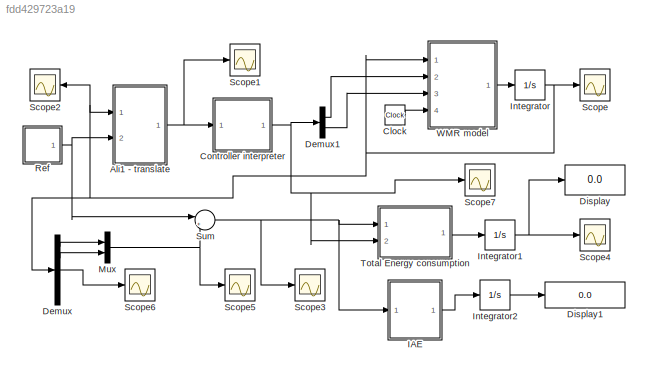
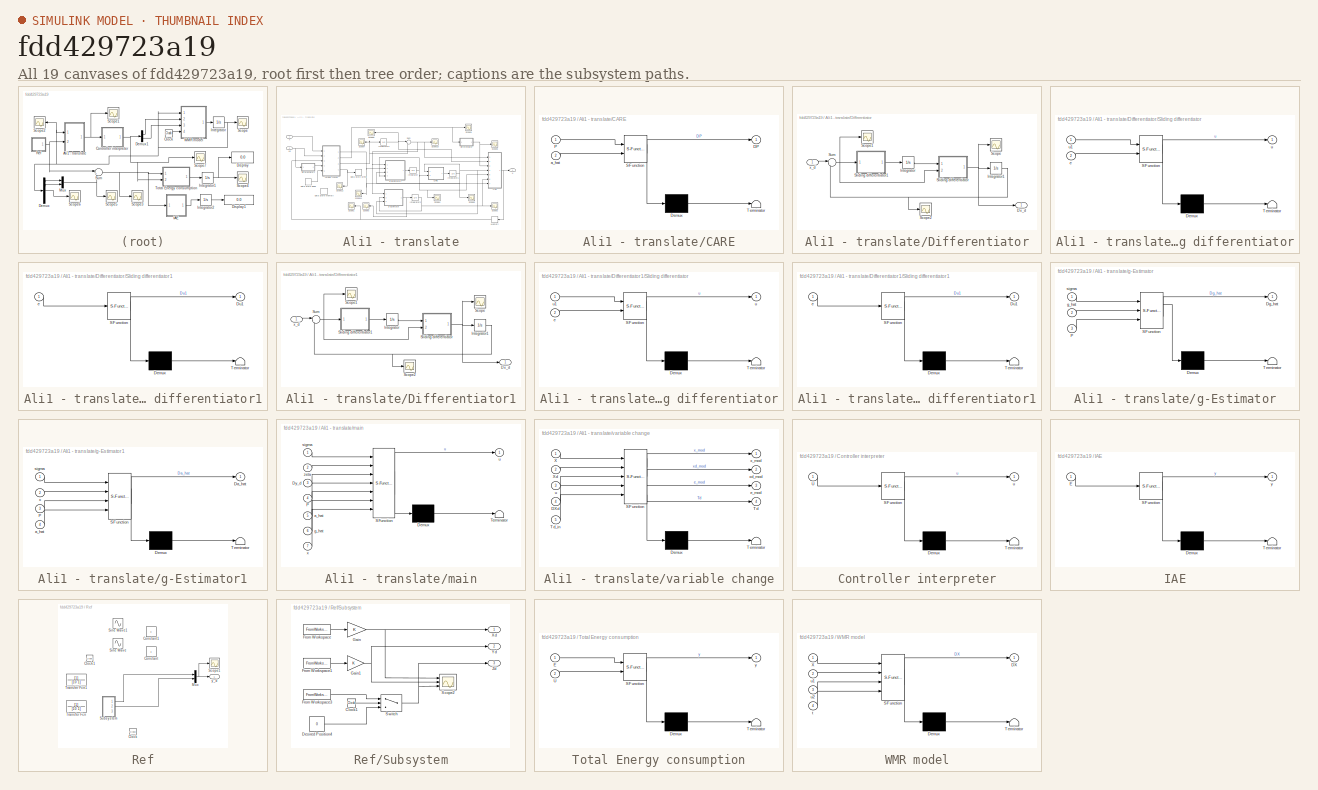
[diagram: thumbnail index - all 19 canvases of the model, root first then tree order]
MODEL slx_fdd429723a19
KIND model
CONFIG AbsTol = auto
CONFIG EnableMultiTasking = on
CONFIG FixedStep = auto
CONFIG InitFcn = Cons_Ali_Mimo_04_WMR_09\n
CONFIG MaxStep = auto
CONFIG MinStep = auto
CONFIG RelTol = 1e-3
CONFIG SampleTimeConstraint = Unconstrained
CONFIG Solver = ode45
CONFIG SolverName = ode45
CONFIG StartTime = 0.0
CONFIG StopTime = 500
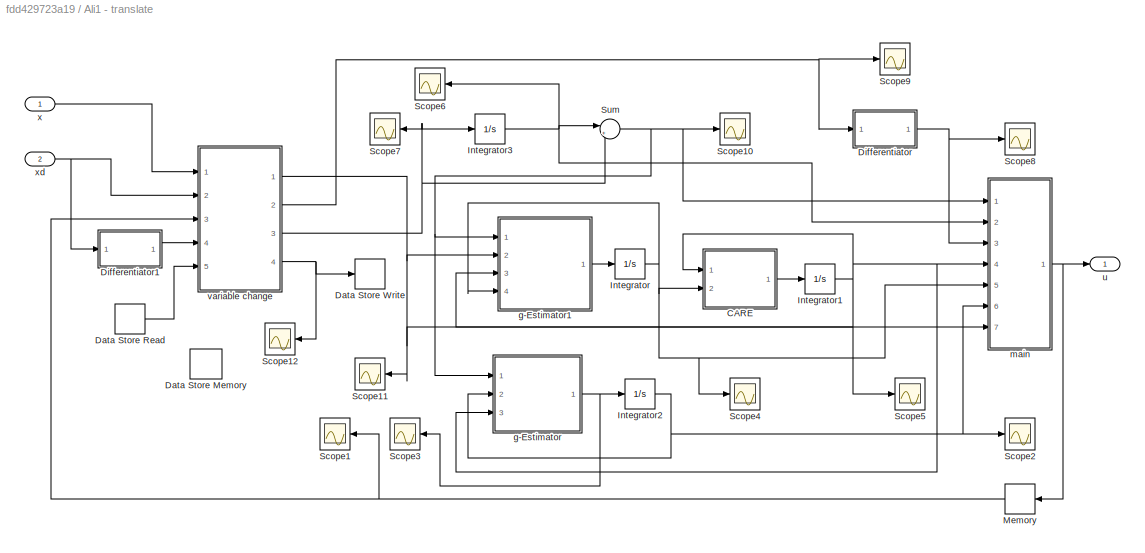
BLOCK [SubSystem] Ali1 - translate
  Ports = [2, 1]
  RequestExecContextInheritance = off
  Variant = off
BLOCK [SubSystem] Ali1 - translate/CARE
  ErrorFcn = Stateflow.Translate.translate
  PermitHierarchicalResolution = ExplicitOnly
  Ports = [2, 1]
  RequestExecContextInheritance = off
  SFBlockType = MATLAB Function
  TreatAsAtomicUnit = on
  Variant = off
BLOCK [Demux] Ali1 - translate/CARE/ Demux 
  Outputs = 1
  Ports = [1, 1]
BLOCK [S-Function] Ali1 - translate/CARE/ SFunction 
  EnableBusSupport = on
  FunctionName = sf_sfun
  Parameters = B,Q,R
  PortCounts = [2 2]
  Ports = [2, 2]
  SFcnIsStateOwnerBlock = off
  SFunctionDeploymentMode = off
  Tag = Stateflow S-Function Ultra_Local_Model_1_Ali37_MIMO_04_WMR_09 20
BLOCK [Terminator] Ali1 - translate/CARE/ Terminator 
BLOCK [Outport] Ali1 - translate/CARE/DP
  IconDisplay = Port number
BLOCK [Inport] Ali1 - translate/CARE/P
  IconDisplay = Port number
BLOCK [Inport] Ali1 - translate/CARE/a_hat
  IconDisplay = Port number
  Port = 2
BLOCK [DataStoreMemory] Ali1 - translate/Data Store Memory
  DataStoreName = Td_G
  ReadBeforeWriteMsg = warning
  ShowAdditionalParam = off
  WriteAfterReadMsg = warning
  WriteAfterWriteMsg = warning
BLOCK [DataStoreRead] Ali1 - translate/Data Store Read
  DataStoreName = Td_G
  Ports = [0, 1]
BLOCK [DataStoreWrite] Ali1 - translate/Data Store Write
  DataStoreName = Td_G
  Ports = [1]
BLOCK [SubSystem] Ali1 - translate/Differentiator
  Ports = [1, 1]
  RequestExecContextInheritance = off
  Variant = off
BLOCK [Outport] Ali1 - translate/Differentiator/Dx_d
  IconDisplay = Port number
BLOCK [Integrator] Ali1 - translate/Differentiator/Integrator
  InitialCondition = zeros(n,1)
  Ports = [1, 1]
BLOCK [Integrator] Ali1 - translate/Differentiator/Integrator1
  InitialCondition = zeros(n,1)
  Ports = [1, 1]
BLOCK [Scope] Ali1 - translate/Differentiator/Scope
  NumInputPorts = 1
  Ports = [1]
  ScopeSpecificationString = C++SS(StrPVP('Location','[516, 375, 840, 614]'),StrPVP('Open','off'),MxPVP('AxesTitles',53,'struct(''axes1'',''%<SignalLabel>'')'),MxPVP('ScopeGraphics',56,'struct(''FigureColor'',''[0.5 0.5 0.5]'',''AxesColor'',''[0 0 0]'',''AxesTickColor'',''[1 1 1]'',''LineColors'',''[1 1 0;1 0 1;0 1 1;1 0 0;0 1 0;0 0 1]'',''LineStyles'',''-|-|-|-|-|-'',''LineWidths'',''[0.5 0.5 0.5 0.5 0.5 0.5]'',''MarkerStyle...<+272ch>  <repeated x3 — deduplicated; at blocks: Scope, Scope2>
BLOCK [Scope] Ali1 - translate/Differentiator/Scope1
  NumInputPorts = 1
  Ports = [1]
  ScopeSpecificationString = C++SS(StrPVP('Location','[5, 49, 1367, 737]'),StrPVP('Open','off'),StrPVP('ZoomMode','yonly'),MxPVP('AxesTitles',53,'struct(''axes1'',''%<SignalLabel>'')'),MxPVP('ScopeGraphics',56,'struct(''FigureColor'',''[0.5 0.5 0.5]'',''AxesColor'',''[0 0 0]'',''AxesTickColor'',''[1 1 1]'',''LineColors'',''[1 1 0;1 0 1;0 1 1;1 0 0;0 1 0;0 0 1]'',''LineStyles'',''-|-|-|-|-|-'',''LineWidths'',''[0.5 0.5 0.5 0.5...<+339ch>
BLOCK [Scope] Ali1 - translate/Differentiator/Scope2
  NumInputPorts = 1
  Ports = [1]
BLOCK [SubSystem] Ali1 - translate/Differentiator/Sliding differentiator
  ErrorFcn = Stateflow.Translate.translate
  PermitHierarchicalResolution = ExplicitOnly
  Ports = [2, 1]
  RequestExecContextInheritance = off
  SFBlockType = MATLAB Function
  TreatAsAtomicUnit = on
  Variant = off
BLOCK [Demux] Ali1 - translate/Differentiator/Sliding differentiator/ Demux 
  Outputs = 1
  Ports = [1, 1]
BLOCK [S-Function] Ali1 - translate/Differentiator/Sliding differentiator/ SFunction 
  EnableBusSupport = on
  FunctionName = sf_sfun
  Parameters = k1,n
  PortCounts = [2 2]
  Ports = [2, 2]
  SFcnIsStateOwnerBlock = off
  SFunctionDeploymentMode = off
  Tag = Stateflow S-Function Ultra_Local_Model_1_Ali37_MIMO_04_WMR_09 4
BLOCK [Terminator] Ali1 - translate/Differentiator/Sliding differentiator/ Terminator 
BLOCK [Inport] Ali1 - translate/Differentiator/Sliding differentiator/e
  IconDisplay = Port number
  Port = 2
BLOCK [Outport] Ali1 - translate/Differentiator/Sliding differentiator/u
  IconDisplay = Port number
BLOCK [Inport] Ali1 - translate/Differentiator/Sliding differentiator/u1
  IconDisplay = Port number
BLOCK [SubSystem] Ali1 - translate/Differentiator/Sliding differentiator1
  ErrorFcn = Stateflow.Translate.translate
  PermitHierarchicalResolution = ExplicitOnly
  Ports = [1, 1]
  RequestExecContextInheritance = off
  SFBlockType = MATLAB Function
  TreatAsAtomicUnit = on
  Variant = off
BLOCK [Demux] Ali1 - translate/Differentiator/Sliding differentiator1/ Demux 
  Outputs = 1
  Ports = [1, 1]
BLOCK [S-Function] Ali1 - translate/Differentiator/Sliding differentiator1/ SFunction 
  EnableBusSupport = on
  FunctionName = sf_sfun
  Parameters = k2,n
  PortCounts = [1 2]
  Ports = [1, 2]
  SFcnIsStateOwnerBlock = off
  SFunctionDeploymentMode = off
  Tag = Stateflow S-Function Ultra_Local_Model_1_Ali37_MIMO_04_WMR_09 5
BLOCK [Terminator] Ali1 - translate/Differentiator/Sliding differentiator1/ Terminator 
BLOCK [Outport] Ali1 - translate/Differentiator/Sliding differentiator1/Du1
  IconDisplay = Port number
BLOCK [Inport] Ali1 - translate/Differentiator/Sliding differentiator1/e
  IconDisplay = Port number
BLOCK [Sum] Ali1 - translate/Differentiator/Sum
  IconShape = round
  InputSameDT = off
  Inputs = |-+
  OutDataTypeStr = Inherit: Inherit via internal rule
  Ports = [2, 1]
  SaturateOnIntegerOverflow = off
BLOCK [Inport] Ali1 - translate/Differentiator/x_d
  IconDisplay = Port number
BLOCK [SubSystem] Ali1 - translate/Differentiator1
  Ports = [1, 1]
  RequestExecContextInheritance = off
  Variant = off
BLOCK [Outport] Ali1 - translate/Differentiator1/Dx_d
  IconDisplay = Port number
BLOCK [Integrator] Ali1 - translate/Differentiator1/Integrator
  InitialCondition = zeros(nd,1)
  Ports = [1, 1]
BLOCK [Integrator] Ali1 - translate/Differentiator1/Integrator1
  InitialCondition = zeros(nd,1)
  Ports = [1, 1]
BLOCK [Scope] Ali1 - translate/Differentiator1/Scope
  NumInputPorts = 1
  Ports = [1]
  ScopeSpecificationString = C++SS(StrPVP('Location','[6, 57, 687, 736]'),StrPVP('Open','off'),StrPVP('ZoomMode','yonly'),MxPVP('AxesTitles',53,'struct(''axes1'',''%<SignalLabel>'')'),MxPVP('ScopeGraphics',56,'struct(''FigureColor'',''[0.5 0.5 0.5]'',''AxesColor'',''[0 0 0]'',''AxesTickColor'',''[1 1 1]'',''LineColors'',''[1 1 0;1 0 1;0 1 1;1 0 0;0 1 0;0 0 1]'',''LineStyles'',''-|-|-|-|-|-'',''LineWidths'',''[0.5 0.5 0.5 0.5 ...<+296ch>
BLOCK [Scope] Ali1 - translate/Differentiator1/Scope1
  NumInputPorts = 1
  Ports = [1]
  ScopeSpecificationString = C++SS(StrPVP('Location','[5, 49, 1367, 737]'),StrPVP('Open','off'),StrPVP('ZoomMode','yonly'),MxPVP('AxesTitles',53,'struct(''axes1'',''%<SignalLabel>'')'),MxPVP('ScopeGraphics',56,'struct(''FigureColor'',''[0.5 0.5 0.5]'',''AxesColor'',''[0 0 0]'',''AxesTickColor'',''[1 1 1]'',''LineColors'',''[1 1 0;1 0 1;0 1 1;1 0 0;0 1 0;0 0 1]'',''LineStyles'',''-|-|-|-|-|-'',''LineWidths'',''[0.5 0.5 0.5 0.5...<+339ch>
BLOCK [Scope] Ali1 - translate/Differentiator1/Scope2
  NumInputPorts = 1
  Ports = [1]
BLOCK [SubSystem] Ali1 - translate/Differentiator1/Sliding differentiator
  ErrorFcn = Stateflow.Translate.translate
  PermitHierarchicalResolution = ExplicitOnly
  Ports = [2, 1]
  RequestExecContextInheritance = off
  SFBlockType = MATLAB Function
  TreatAsAtomicUnit = on
  Variant = off
BLOCK [Demux] Ali1 - translate/Differentiator1/Sliding differentiator/ Demux 
  Outputs = 1
  Ports = [1, 1]
BLOCK [S-Function] Ali1 - translate/Differentiator1/Sliding differentiator/ SFunction 
  EnableBusSupport = on
  FunctionName = sf_sfun
  Parameters = k1,nd
  PortCounts = [2 2]
  Ports = [2, 2]
  SFcnIsStateOwnerBlock = off
  SFunctionDeploymentMode = off
  Tag = Stateflow S-Function Ultra_Local_Model_1_Ali37_MIMO_04_WMR_09 22
BLOCK [Terminator] Ali1 - translate/Differentiator1/Sliding differentiator/ Terminator 
BLOCK [Inport] Ali1 - translate/Differentiator1/Sliding differentiator/e
  IconDisplay = Port number
  Port = 2
BLOCK [Outport] Ali1 - translate/Differentiator1/Sliding differentiator/u
  IconDisplay = Port number
BLOCK [Inport] Ali1 - translate/Differentiator1/Sliding differentiator/u1
  IconDisplay = Port number
BLOCK [SubSystem] Ali1 - translate/Differentiator1/Sliding differentiator1
  ErrorFcn = Stateflow.Translate.translate
  PermitHierarchicalResolution = ExplicitOnly
  Ports = [1, 1]
  RequestExecContextInheritance = off
  SFBlockType = MATLAB Function
  TreatAsAtomicUnit = on
  Variant = off
BLOCK [Demux] Ali1 - translate/Differentiator1/Sliding differentiator1/ Demux 
  Outputs = 1
  Ports = [1, 1]
BLOCK [S-Function] Ali1 - translate/Differentiator1/Sliding differentiator1/ SFunction 
  EnableBusSupport = on
  FunctionName = sf_sfun
  Parameters = k2,nd
  PortCounts = [1 2]
  Ports = [1, 2]
  SFcnIsStateOwnerBlock = off
  SFunctionDeploymentMode = off
  Tag = Stateflow S-Function Ultra_Local_Model_1_Ali37_MIMO_04_WMR_09 23
BLOCK [Terminator] Ali1 - translate/Differentiator1/Sliding differentiator1/ Terminator 
BLOCK [Outport] Ali1 - translate/Differentiator1/Sliding differentiator1/Du1
  IconDisplay = Port number
BLOCK [Inport] Ali1 - translate/Differentiator1/Sliding differentiator1/e
  IconDisplay = Port number
BLOCK [Sum] Ali1 - translate/Differentiator1/Sum
  IconShape = round
  InputSameDT = off
  Inputs = |-+
  OutDataTypeStr = Inherit: Inherit via internal rule
  Ports = [2, 1]
  SaturateOnIntegerOverflow = off
BLOCK [Inport] Ali1 - translate/Differentiator1/x_d
  IconDisplay = Port number
BLOCK [Integrator] Ali1 - translate/Integrator
  InitialCondition = zeros(n)
  Ports = [1, 1]
BLOCK [Integrator] Ali1 - translate/Integrator1
  InitialCondition = eye(n)
  Ports = [1, 1]
BLOCK [Integrator] Ali1 - translate/Integrator2
  InitialCondition = zeros(n,1)
  Ports = [1, 1]
BLOCK [Integrator] Ali1 - translate/Integrator3
  InitialCondition = zeros(n,1)
  Ports = [1, 1]
BLOCK [Memory] Ali1 - translate/Memory
  InitialCondition = zeros(m,1)
BLOCK [Scope] Ali1 - translate/Scope1
  NumInputPorts = 1
  Ports = [1]
  ScopeSpecificationString = C++SS(StrPVP('Location','[6, 49, 1360, 737]'),StrPVP('Open','off'),StrPVP('ZoomMode','yonly'),MxPVP('AxesTitles',53,'struct(''axes1'',''%<SignalLabel>'')'),MxPVP('ScopeGraphics',56,'struct(''FigureColor'',''[0.5 0.5 0.5]'',''AxesColor'',''[0 0 0]'',''AxesTickColor'',''[1 1 1]'',''LineColors'',''[1 1 0;1 0 1;0 1 1;1 0 0;0 1 0;0 0 1]'',''LineStyles'',''-|-|-|-|-|-'',''LineWidths'',''[0.5 0.5 0.5 0.5...<+289ch>
BLOCK [Scope] Ali1 - translate/Scope10
  NumInputPorts = 1
  Ports = [1]
  ScopeSpecificationString = C++SS(StrPVP('Location','[6, 49, 1360, 737]'),StrPVP('Open','off'),StrPVP('ZoomMode','yonly'),MxPVP('AxesTitles',53,'struct(''axes1'',''%<SignalLabel>'')'),MxPVP('ScopeGraphics',56,'struct(''FigureColor'',''[0.5 0.5 0.5]'',''AxesColor'',''[0 0 0]'',''AxesTickColor'',''[1 1 1]'',''LineColors'',''[1 1 0;1 0 1;0 1 1;1 0 0;0 1 0;0 0 1]'',''LineStyles'',''-|-|-|-|-|-'',''LineWidths'',''[0.5 0.5 0.5 0.5...<+323ch>
BLOCK [Scope] Ali1 - translate/Scope11
  NumInputPorts = 1
  Ports = [1]
  ScopeSpecificationString = C++SS(StrPVP('Location','[6, 49, 1360, 737]'),StrPVP('Open','off'),StrPVP('ZoomMode','yonly'),MxPVP('AxesTitles',53,'struct(''axes1'',''%<SignalLabel>'')'),MxPVP('ScopeGraphics',56,'struct(''FigureColor'',''[0.5 0.5 0.5]'',''AxesColor'',''[0 0 0]'',''AxesTickColor'',''[1 1 1]'',''LineColors'',''[1 1 0;1 0 1;0 1 1;1 0 0;0 1 0;0 0 1]'',''LineStyles'',''-|-|-|-|-|-'',''LineWidths'',''[0.5 0.5 0.5 0.5...<+265ch>
BLOCK [Scope] Ali1 - translate/Scope12
  NumInputPorts = 1
  Ports = [1]
  ScopeSpecificationString = C++SS(StrPVP('Location','[5, 49, 1367, 737]'),StrPVP('Open','off'),StrPVP('ZoomMode','xonly'),MxPVP('AxesTitles',53,'struct(''axes1'',''%<SignalLabel>'')'),MxPVP('ScopeGraphics',56,'struct(''FigureColor'',''[0.5 0.5 0.5]'',''AxesColor'',''[0 0 0]'',''AxesTickColor'',''[1 1 1]'',''LineColors'',''[1 1 0;1 0 1;0 1 1;1 0 0;0 1 0;0 0 1]'',''LineStyles'',''-|-|-|-|-|-'',''LineWidths'',''[0.5 0.5 0.5 0.5...<+361ch>
BLOCK [Scope] Ali1 - translate/Scope2
  NumInputPorts = 1
  Ports = [1]
  ScopeSpecificationString = C++SS(StrPVP('Location','[6, 49, 1360, 737]'),StrPVP('Open','off'),StrPVP('ZoomMode','xonly'),MxPVP('AxesTitles',53,'struct(''axes1'',''%<SignalLabel>'')'),MxPVP('ScopeGraphics',56,'struct(''FigureColor'',''[0.5 0.5 0.5]'',''AxesColor'',''[0 0 0]'',''AxesTickColor'',''[1 1 1]'',''LineColors'',''[1 1 0;1 0 1;0 1 1;1 0 0;0 1 0;0 0 1]'',''LineStyles'',''-|-|-|-|-|-'',''LineWidths'',''[0.5 0.5 0.5 0.5...<+364ch>
BLOCK [Scope] Ali1 - translate/Scope3
  NumInputPorts = 1
  Ports = [1]
  ScopeSpecificationString = C++SS(StrPVP('Location','[5, 49, 1367, 737]'),StrPVP('Open','off'),MxPVP('AxesTitles',53,'struct(''axes1'',''%<SignalLabel>'')'),MxPVP('ScopeGraphics',56,'struct(''FigureColor'',''[0.5 0.5 0.5]'',''AxesColor'',''[0 0 0]'',''AxesTickColor'',''[1 1 1]'',''LineColors'',''[1 1 0;1 0 1;0 1 1;1 0 0;0 1 0;0 0 1]'',''LineStyles'',''-|-|-|-|-|-'',''LineWidths'',''[0.5 0.5 0.5 0.5 0.5 0.5]'',''MarkerStyles'...<+261ch>
BLOCK [Scope] Ali1 - translate/Scope4
  NumInputPorts = 1
  Ports = [1]
  ScopeSpecificationString = C++SS(StrPVP('Location','[6, 49, 1360, 737]'),StrPVP('Open','off'),StrPVP('ZoomMode','yonly'),MxPVP('AxesTitles',53,'struct(''axes1'',''%<SignalLabel>'')'),MxPVP('ScopeGraphics',56,'struct(''FigureColor'',''[0.5 0.5 0.5]'',''AxesColor'',''[0 0 0]'',''AxesTickColor'',''[1 1 1]'',''LineColors'',''[1 1 0;1 0 1;0 1 1;1 0 0;0 1 0;0 0 1]'',''LineStyles'',''-|-|-|-|-|-'',''LineWidths'',''[0.5 0.5 0.5 0.5...<+363ch>
BLOCK [Scope] Ali1 - translate/Scope5
  NumInputPorts = 1
  Ports = [1]
  ScopeSpecificationString = C++SS(StrPVP('Location','[6, 49, 1360, 737]'),StrPVP('Open','off'),StrPVP('ZoomMode','yonly'),MxPVP('AxesTitles',53,'struct(''axes1'',''%<SignalLabel>'')'),MxPVP('ScopeGraphics',56,'struct(''FigureColor'',''[0.5 0.5 0.5]'',''AxesColor'',''[0 0 0]'',''AxesTickColor'',''[1 1 1]'',''LineColors'',''[1 1 0;1 0 1;0 1 1;1 0 0;0 1 0;0 0 1]'',''LineStyles'',''-|-|-|-|-|-'',''LineWidths'',''[0.5 0.5 0.5 0.5...<+359ch>
BLOCK [Scope] Ali1 - translate/Scope6
  NumInputPorts = 1
  Ports = [1]
  ScopeSpecificationString = C++SS(StrPVP('Location','[188, 390, 512, 629]'),StrPVP('Open','off'),MxPVP('AxesTitles',53,'struct(''axes1'',''%<SignalLabel>'')'),MxPVP('ScopeGraphics',56,'struct(''FigureColor'',''[0.5 0.5 0.5]'',''AxesColor'',''[0 0 0]'',''AxesTickColor'',''[1 1 1]'',''LineColors'',''[1 1 0;1 0 1;0 1 1;1 0 0;0 1 0;0 0 1]'',''LineStyles'',''-|-|-|-|-|-'',''LineWidths'',''[0.5 0.5 0.5 0.5 0.5 0.5]'',''MarkerStyle...<+272ch>
BLOCK [Scope] Ali1 - translate/Scope7
  NumInputPorts = 1
  Ports = [1]
  ScopeSpecificationString = C++SS(StrPVP('Location','[5, 49, 1367, 737]'),StrPVP('Open','off'),StrPVP('ZoomMode','yonly'),MxPVP('AxesTitles',53,'struct(''axes1'',''%<SignalLabel>'')'),MxPVP('ScopeGraphics',56,'struct(''FigureColor'',''[0.5 0.5 0.5]'',''AxesColor'',''[0 0 0]'',''AxesTickColor'',''[1 1 1]'',''LineColors'',''[1 1 0;1 0 1;0 1 1;1 0 0;0 1 0;0 0 1]'',''LineStyles'',''-|-|-|-|-|-'',''LineWidths'',''[0.5 0.5 0.5 0.5...<+297ch>
BLOCK [Scope] Ali1 - translate/Scope8
  NumInputPorts = 1
  Ports = [1]
  ScopeSpecificationString = C++SS(StrPVP('Location','[6, 49, 1360, 737]'),StrPVP('Open','off'),StrPVP('ZoomMode','yonly'),MxPVP('AxesTitles',53,'struct(''axes1'',''%<SignalLabel>'')'),MxPVP('ScopeGraphics',56,'struct(''FigureColor'',''[0.5 0.5 0.5]'',''AxesColor'',''[0 0 0]'',''AxesTickColor'',''[1 1 1]'',''LineColors'',''[1 1 0;1 0 1;0 1 1;1 0 0;0 1 0;0 0 1]'',''LineStyles'',''-|-|-|-|-|-'',''LineWidths'',''[0.5 0.5 0.5 0.5...<+365ch>
BLOCK [Scope] Ali1 - translate/Scope9
  NumInputPorts = 1
  Ports = [1]
  ScopeSpecificationString = C++SS(StrPVP('Location','[81, 34, 1361, 748]'),StrPVP('Open','off'),StrPVP('ZoomMode','yonly'),MxPVP('AxesTitles',53,'struct(''axes1'',''%<SignalLabel>'')'),MxPVP('ScopeGraphics',56,'struct(''FigureColor'',''[0.5 0.5 0.5]'',''AxesColor'',''[0 0 0]'',''AxesTickColor'',''[1 1 1]'',''LineColors'',''[1 1 0;1 0 1;0 1 1;1 0 0;0 1 0;0 0 1]'',''LineStyles'',''-|-|-|-|-|-'',''LineWidths'',''[0.5 0.5 0.5 0....<+335ch>
BLOCK [Sum] Ali1 - translate/Sum
  IconShape = round
  InputSameDT = off
  Inputs = |++
  OutDataTypeStr = Inherit: Inherit via internal rule
  Ports = [2, 1]
  SaturateOnIntegerOverflow = off
BLOCK [SubSystem] Ali1 - translate/g-Estimator
  ErrorFcn = Stateflow.Translate.translate
  PermitHierarchicalResolution = ExplicitOnly
  Ports = [3, 1]
  RequestExecContextInheritance = off
  SFBlockType = MATLAB Function
  TreatAsAtomicUnit = on
  Variant = off
BLOCK [Demux] Ali1 - translate/g-Estimator/ Demux 
  Outputs = 1
  Ports = [1, 1]
BLOCK [S-Function] Ali1 - translate/g-Estimator/ SFunction 
  EnableBusSupport = on
  FunctionName = sf_sfun
  Parameters = gamma_1,rho_1
  PortCounts = [3 2]
  Ports = [3, 2]
  SFcnIsStateOwnerBlock = off
  SFunctionDeploymentMode = off
  Tag = Stateflow S-Function Ultra_Local_Model_1_Ali37_MIMO_04_WMR_09 6
BLOCK [Terminator] Ali1 - translate/g-Estimator/ Terminator 
BLOCK [Outport] Ali1 - translate/g-Estimator/Dg_hat
  IconDisplay = Port number
BLOCK [Inport] Ali1 - translate/g-Estimator/P
  IconDisplay = Port number
  Port = 3
BLOCK [Inport] Ali1 - translate/g-Estimator/g_hat
  IconDisplay = Port number
  Port = 2
BLOCK [Inport] Ali1 - translate/g-Estimator/sigma
  IconDisplay = Port number
BLOCK [SubSystem] Ali1 - translate/g-Estimator1
  ErrorFcn = Stateflow.Translate.translate
  PermitHierarchicalResolution = ExplicitOnly
  Ports = [4, 1]
  RequestExecContextInheritance = off
  SFBlockType = MATLAB Function
  TreatAsAtomicUnit = on
  Variant = off
BLOCK [Demux] Ali1 - translate/g-Estimator1/ Demux 
  Outputs = 1
  Ports = [1, 1]
BLOCK [S-Function] Ali1 - translate/g-Estimator1/ SFunction 
  EnableBusSupport = on
  FunctionName = sf_sfun
  Parameters = gamma_0,rho_0
  PortCounts = [4 2]
  Ports = [4, 2]
  SFcnIsStateOwnerBlock = off
  SFunctionDeploymentMode = off
  Tag = Stateflow S-Function Ultra_Local_Model_1_Ali37_MIMO_04_WMR_09 7
BLOCK [Terminator] Ali1 - translate/g-Estimator1/ Terminator 
BLOCK [Outport] Ali1 - translate/g-Estimator1/Da_hat
  IconDisplay = Port number
BLOCK [Inport] Ali1 - translate/g-Estimator1/P
  IconDisplay = Port number
  Port = 3
BLOCK [Inport] Ali1 - translate/g-Estimator1/a_hat
  IconDisplay = Port number
  Port = 4
BLOCK [Inport] Ali1 - translate/g-Estimator1/sigma
  IconDisplay = Port number
BLOCK [Inport] Ali1 - translate/g-Estimator1/x
  IconDisplay = Port number
  Port = 2
BLOCK [SubSystem] Ali1 - translate/main
  ErrorFcn = Stateflow.Translate.translate
  PermitHierarchicalResolution = ExplicitOnly
  Ports = [7, 1]
  RequestExecContextInheritance = off
  SFBlockType = MATLAB Function
  TreatAsAtomicUnit = on
  Variant = off
BLOCK [Demux] Ali1 - translate/main/ Demux 
  Outputs = 1
  Ports = [1, 1]
BLOCK [S-Function] Ali1 - translate/main/ SFunction 
  EnableBusSupport = on
  FunctionName = sf_sfun
  Parameters = B,BBT_inv,Q,R,n
  PortCounts = [7 2]
  Ports = [7, 2]
  SFcnIsStateOwnerBlock = off
  SFunctionDeploymentMode = off
  Tag = Stateflow S-Function Ultra_Local_Model_1_Ali37_MIMO_04_WMR_09 8
BLOCK [Terminator] Ali1 - translate/main/ Terminator 
BLOCK [Inport] Ali1 - translate/main/Dy_d
  IconDisplay = Port number
  Port = 3
BLOCK [Inport] Ali1 - translate/main/P
  IconDisplay = Port number
  Port = 4
BLOCK [Inport] Ali1 - translate/main/a_hat
  IconDisplay = Port number
  Port = 5
BLOCK [Inport] Ali1 - translate/main/g_hat
  IconDisplay = Port number
  Port = 6
BLOCK [Inport] Ali1 - translate/main/sigma
  IconDisplay = Port number
BLOCK [Outport] Ali1 - translate/main/u
  IconDisplay = Port number
BLOCK [Inport] Ali1 - translate/main/x
  IconDisplay = Port number
  Port = 7
BLOCK [Inport] Ali1 - translate/main/zeta
  IconDisplay = Port number
  Port = 2
BLOCK [Outport] Ali1 - translate/u
  IconDisplay = Port number
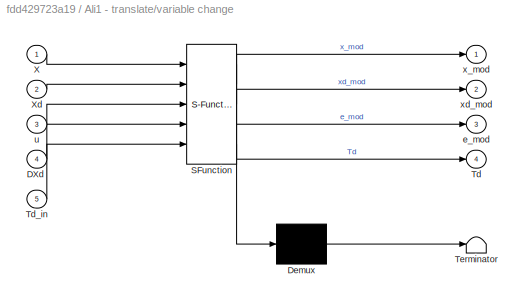
BLOCK [SubSystem] Ali1 - translate/variable change
  ErrorFcn = Stateflow.Translate.translate
  PermitHierarchicalResolution = ExplicitOnly
  Ports = [5, 4]
  RequestExecContextInheritance = off
  SFBlockType = MATLAB Function
  TreatAsAtomicUnit = on
  Variant = off
BLOCK [Demux] Ali1 - translate/variable change/ Demux 
  Outputs = 1
  Ports = [1, 1]
BLOCK [S-Function] Ali1 - translate/variable change/ SFunction 
  EnableBusSupport = on
  FunctionName = sf_sfun
  Parameters = Thresh
  PortCounts = [5 5]
  Ports = [5, 5]
  SFcnIsStateOwnerBlock = off
  SFunctionDeploymentMode = off
  Tag = Stateflow S-Function Ultra_Local_Model_1_Ali37_MIMO_04_WMR_09 9
BLOCK [Terminator] Ali1 - translate/variable change/ Terminator 
BLOCK [Inport] Ali1 - translate/variable change/DXd
  IconDisplay = Port number
  Port = 4
BLOCK [Outport] Ali1 - translate/variable change/Td
  IconDisplay = Port number
  Port = 4
BLOCK [Inport] Ali1 - translate/variable change/Td_in
  IconDisplay = Port number
  Port = 5
BLOCK [Inport] Ali1 - translate/variable change/X
  IconDisplay = Port number
BLOCK [Inport] Ali1 - translate/variable change/Xd
  IconDisplay = Port number
  Port = 2
BLOCK [Outport] Ali1 - translate/variable change/e_mod
  IconDisplay = Port number
  Port = 3
BLOCK [Inport] Ali1 - translate/variable change/u
  IconDisplay = Port number
  Port = 3
BLOCK [Outport] Ali1 - translate/variable change/x_mod
  IconDisplay = Port number
BLOCK [Outport] Ali1 - translate/variable change/xd_mod
  IconDisplay = Port number
  Port = 2
BLOCK [Inport] Ali1 - translate/x
  IconDisplay = Port number
BLOCK [Inport] Ali1 - translate/xd
  IconDisplay = Port number
  Port = 2
BLOCK [Clock] Clock
BLOCK [SubSystem] Controller interpreter
  ErrorFcn = Stateflow.Translate.translate
  PermitHierarchicalResolution = ExplicitOnly
  Ports = [1, 1]
  RequestExecContextInheritance = off
  SFBlockType = MATLAB Function
  TreatAsAtomicUnit = on
  Variant = off
BLOCK [Demux] Controller interpreter/ Demux 
  Outputs = 1
  Ports = [1, 1]
BLOCK [S-Function] Controller interpreter/ SFunction 
  EnableBusSupport = on
  FunctionName = sf_sfun
  PortCounts = [1 2]
  Ports = [1, 2]
  SFcnIsStateOwnerBlock = off
  SFunctionDeploymentMode = off
  Tag = Stateflow S-Function Ultra_Local_Model_1_Ali37_MIMO_04_WMR_09 10
BLOCK [Terminator] Controller interpreter/ Terminator 
BLOCK [Inport] Controller interpreter/U
  IconDisplay = Port number
BLOCK [Outport] Controller interpreter/u
  IconDisplay = Port number
BLOCK [Demux] Demux
  DisplayOption = bar
  Outputs = 5
  Ports = [1, 5]
BLOCK [Demux] Demux1
  DisplayOption = bar
  Outputs = 2
  Ports = [1, 2]
BLOCK [Display] Display
  Decimation = 1
  Ports = [1]
BLOCK [Display] Display1
  Decimation = 1
  Ports = [1]
BLOCK [SubSystem] IAE
  ErrorFcn = Stateflow.Translate.translate
  PermitHierarchicalResolution = ExplicitOnly
  Ports = [1, 1]
  RequestExecContextInheritance = off
  SFBlockType = MATLAB Function
  TreatAsAtomicUnit = on
  Variant = off
BLOCK [Demux] IAE/ Demux 
  Outputs = 1
  Ports = [1, 1]
BLOCK [S-Function] IAE/ SFunction 
  EnableBusSupport = on
  FunctionName = sf_sfun
  PortCounts = [1 2]
  Ports = [1, 2]
  SFcnIsStateOwnerBlock = off
  SFunctionDeploymentMode = off
  Tag = Stateflow S-Function Ultra_Local_Model_1_Ali37_MIMO_04_WMR_09 1
BLOCK [Terminator] IAE/ Terminator 
BLOCK [Inport] IAE/E
  IconDisplay = Port number
BLOCK [Outport] IAE/y
  IconDisplay = Port number
BLOCK [Integrator] Integrator
  InitialCondition = [0;0;0;0;0]
  Ports = [1, 1]
BLOCK [Integrator] Integrator1
  Ports = [1, 1]
BLOCK [Integrator] Integrator2
  Ports = [1, 1]
BLOCK [Mux] Mux
  DisplayOption = bar
  Inputs = 2
  Ports = [2, 1]
BLOCK [SubSystem] Ref
  Ports = [0, 1]
  RequestExecContextInheritance = off
  Variant = off
BLOCK [Clock] Ref/Clock
BLOCK [Clock] Ref/Clock1
BLOCK [Constant] Ref/Constant
  Value = 3
BLOCK [Constant] Ref/Constant1
  Value = 0
BLOCK [Mux] Ref/Mux
  DisplayOption = bar
  Inputs = 2
  Ports = [2, 1]
BLOCK [Scope] Ref/Scope1
  NumInputPorts = 1
  Ports = [1]
  ScopeSpecificationString = C++SS(StrPVP('Location','[5, 49, 1367, 737]'),StrPVP('Open','off'),MxPVP('AxesTitles',53,'struct(''axes1'',''%<SignalLabel>'')'),MxPVP('ScopeGraphics',56,'struct(''FigureColor'',''[0.5 0.5 0.5]'',''AxesColor'',''[0 0 0]'',''AxesTickColor'',''[1 1 1]'',''LineColors'',''[1 1 0;1 0 1;0 1 1;1 0 0;0 1 0;0 0 1]'',''LineStyles'',''-|-|-|-|-|-'',''LineWidths'',''[0.5 0.5 0.5 0.5 0.5 0.5]'',''MarkerStyles'...<+294ch>
BLOCK [Sin] Ref/Sine Wave
  Amplitude = 5
  Ports = [0, 1]
  SampleTime = 0
BLOCK [Sin] Ref/Sine Wave1
  Amplitude = 5
  Phase = pi/2
  Ports = [0, 1]
  SampleTime = 0
BLOCK [SubSystem] Ref/Subsystem
  Ports = [0, 3]
  RequestExecContextInheritance = off
  Variant = off
BLOCK [Clock] Ref/Subsystem/Clock1
BLOCK [Constant] Ref/Subsystem/Desired Position4
  Value = 0
  VectorParams1D = off
BLOCK [FromWorkspace] Ref/Subsystem/From Workspace
  SampleTime = 0
  VariableName = RECT_X
  ZeroCross = on
BLOCK [FromWorkspace] Ref/Subsystem/From Workspace1
  SampleTime = 0
  VariableName = RECT_Y
  ZeroCross = on
BLOCK [FromWorkspace] Ref/Subsystem/From Workspace3
  SampleTime = 0
  VariableName = RECT_Z
  ZeroCross = on
BLOCK [Gain] Ref/Subsystem/Gain
  OutDataTypeStr = Inherit: Inherit via internal rule
  ParamDataTypeStr = Inherit: Inherit via internal rule
  SaturateOnIntegerOverflow = off
BLOCK [Gain] Ref/Subsystem/Gain1
  OutDataTypeStr = Inherit: Inherit via internal rule
  ParamDataTypeStr = Inherit: Inherit via internal rule
  SaturateOnIntegerOverflow = off
BLOCK [Scope] Ref/Subsystem/Scope2
  NumInputPorts = 3
  Ports = [3]
  ScopeSpecificationString = C++SS(StrPVP('Location','[6, 49, 1360, 737]'),StrPVP('Open','off'),MxPVP('AxesTitles',53,'struct(''axes1'',''%<SignalLabel>'',''axes2'',''%<SignalLabel>'',''axes3'',''%<SignalLabel>'')'),MxPVP('ScopeGraphics',56,'struct(''FigureColor'',''[0.5 0.5 0.5]'',''AxesColor'',''[0 0 0]'',''AxesTickColor'',''[1 1 1]'',''LineColors'',''[1 1 0;1 0 1;0 1 1;1 0 0;0 1 0;0 0 1]'',''LineStyles'',''-|-|-|-|-|-'',''...<+410ch>
BLOCK [Switch] Ref/Subsystem/Switch
  Criteria = u2 > Threshold
  InputSameDT = off
  SaturateOnIntegerOverflow = off
  Threshold = 10
BLOCK [Outport] Ref/Subsystem/Xd
  IconDisplay = Port number
BLOCK [Outport] Ref/Subsystem/Yd
  IconDisplay = Port number
  Port = 2
BLOCK [Outport] Ref/Subsystem/Zd
  IconDisplay = Port number
  Port = 3
BLOCK [TransferFcn] Ref/Transfer Fcn
  Denominator = [10 1]
BLOCK [TransferFcn] Ref/Transfer Fcn1
  Denominator = [10 1]
BLOCK [Outport] Ref/y_d
  IconDisplay = Port number
BLOCK [Scope] Scope
  NumInputPorts = 1
  Ports = [1]
  ScopeSpecificationString = C++SS(StrPVP('Location','[7, 57, 1361, 745]'),StrPVP('Open','off'),StrPVP('ZoomMode','xonly'),MxPVP('AxesTitles',53,'struct(''axes1'',''%<SignalLabel>'')'),MxPVP('ScopeGraphics',56,'struct(''FigureColor'',''[0.5 0.5 0.5]'',''AxesColor'',''[0 0 0]'',''AxesTickColor'',''[1 1 1]'',''LineColors'',''[1 1 0;1 0 1;0 1 1;1 0 0;0 1 0;0 0 1]'',''LineStyles'',''-|-|-|-|-|-'',''LineWidths'',''[0.5 0.5 0.5 0.5...<+359ch>
BLOCK [Scope] Scope1
  NumInputPorts = 1
  Ports = [1]
  ScopeSpecificationString = Simulink.scopes.TimeScopeBlockCfg('CurrentConfiguration', extmgr.ConfigurationSet(extmgr.Configuration('Core','General UI',true),extmgr.Configuration('Core','Source UI',true),extmgr.Configuration('Sources','WiredSimulink',true,'DataLoggingVariableName','u','DataLoggingSaveFormat','StructureWithTime','DataLoggingDecimation','1','DataLoggingDecimateData',true),extmgr.Configuration('Visuals','Time Do...<+2733ch>
BLOCK [Scope] Scope2
  NumInputPorts = 1
  Ports = [1]
  ScopeSpecificationString = C++SS(StrPVP('Location','[5, 49, 1367, 737]'),StrPVP('Open','off'),StrPVP('ZoomMode','yonly'),MxPVP('AxesTitles',53,'struct(''axes1'',''%<SignalLabel>'')'),MxPVP('ScopeGraphics',56,'struct(''FigureColor'',''[0.5 0.5 0.5]'',''AxesColor'',''[0 0 0]'',''AxesTickColor'',''[1 1 1]'',''LineColors'',''[1 1 0;1 0 1;0 1 1;1 0 0;0 1 0;0 0 1]'',''LineStyles'',''-|-|-|-|-|-'',''LineWidths'',''[0.5 0.5 0.5 0.5...<+288ch>
BLOCK [Scope] Scope3
  NumInputPorts = 1
  Ports = [1]
  ScopeSpecificationString = C++SS(StrPVP('Location','[5, 49, 1367, 737]'),StrPVP('Open','off'),StrPVP('ZoomMode','yonly'),MxPVP('AxesTitles',53,'struct(''axes1'',''%<SignalLabel>'')'),MxPVP('ScopeGraphics',56,'struct(''FigureColor'',''[0.5 0.5 0.5]'',''AxesColor'',''[0 0 0]'',''AxesTickColor'',''[1 1 1]'',''LineColors'',''[1 1 0;1 0 1;0 1 1;1 0 0;0 1 0;0 0 1]'',''LineStyles'',''-|-|-|-|-|-'',''LineWidths'',''[0.5 0.5 0.5 0.5...<+362ch>
BLOCK [Scope] Scope4
  NumInputPorts = 1
  Ports = [1]
  ScopeSpecificationString = C++SS(StrPVP('Location','[5, 49, 1367, 737]'),StrPVP('Open','off'),StrPVP('ZoomMode','xonly'),MxPVP('AxesTitles',53,'struct(''axes1'',''%<SignalLabel>'')'),MxPVP('ScopeGraphics',56,'struct(''FigureColor'',''[0.5 0.5 0.5]'',''AxesColor'',''[0 0 0]'',''AxesTickColor'',''[1 1 1]'',''LineColors'',''[1 1 0;1 0 1;0 1 1;1 0 0;0 1 0;0 0 1]'',''LineStyles'',''-|-|-|-|-|-'',''LineWidths'',''[0.5 0.5 0.5 0.5...<+332ch>
BLOCK [Scope] Scope5
  NumInputPorts = 1
  Ports = [1]
  ScopeSpecificationString = Simulink.scopes.TimeScopeBlockCfg('CurrentConfiguration', extmgr.ConfigurationSet(extmgr.Configuration('Core','General UI',true),extmgr.Configuration('Core','Source UI',true),extmgr.Configuration('Sources','WiredSimulink',true,'DataLogging',true,'DataLoggingVariableName','Pos','DataLoggingSaveFormat','StructureWithTime','DataLoggingDecimation','1','DataLoggingDecimateData',true),extmgr.Configurati...<+1714ch>
BLOCK [Scope] Scope6
  NumInputPorts = 1
  Ports = [1]
  ScopeSpecificationString = C++SS(StrPVP('Location','[81, 48, 1361, 762]'),StrPVP('Open','off'),StrPVP('ZoomMode','yonly'),MxPVP('AxesTitles',53,'struct(''axes1'',''%<SignalLabel>'')'),MxPVP('ScopeGraphics',56,'struct(''FigureColor'',''[0.5 0.5 0.5]'',''AxesColor'',''[0 0 0]'',''AxesTickColor'',''[1 1 1]'',''LineColors'',''[1 1 0;1 0 1;0 1 1;1 0 0;0 1 0;0 0 1]'',''LineStyles'',''-|-|-|-|-|-'',''LineWidths'',''[0.5 0.5 0.5 0....<+395ch>
BLOCK [Scope] Scope7
  NumInputPorts = 1
  Ports = [1]
  ScopeSpecificationString = Simulink.scopes.TimeScopeBlockCfg('CurrentConfiguration', extmgr.ConfigurationSet(extmgr.Configuration('Core','General UI',true),extmgr.Configuration('Core','Source UI',true),extmgr.Configuration('Sources','WiredSimulink',true,'DataLogging',true,'DataLoggingVariableName','U','DataLoggingSaveFormat','StructureWithTime','DataLoggingDecimation','1','DataLoggingDecimateData',true),extmgr.Configuration...<+1748ch>
BLOCK [Sum] Sum
  IconShape = round
  InputSameDT = off
  Inputs = |+-
  OutDataTypeStr = Inherit: Inherit via internal rule
  Ports = [2, 1]
  SaturateOnIntegerOverflow = off
BLOCK [SubSystem] Total Energy consumption
  ErrorFcn = Stateflow.Translate.translate
  PermitHierarchicalResolution = ExplicitOnly
  Ports = [2, 1]
  RequestExecContextInheritance = off
  SFBlockType = MATLAB Function
  TreatAsAtomicUnit = on
  Variant = off
BLOCK [Demux] Total Energy consumption/ Demux 
  Outputs = 1
  Ports = [1, 1]
BLOCK [S-Function] Total Energy consumption/ SFunction 
  EnableBusSupport = on
  FunctionName = sf_sfun
  PortCounts = [2 2]
  Ports = [2, 2]
  SFcnIsStateOwnerBlock = off
  SFunctionDeploymentMode = off
  Tag = Stateflow S-Function Ultra_Local_Model_1_Ali37_MIMO_04_WMR_09 12
BLOCK [Terminator] Total Energy consumption/ Terminator 
BLOCK [Inport] Total Energy consumption/E
  IconDisplay = Port number
BLOCK [Inport] Total Energy consumption/U
  IconDisplay = Port number
  Port = 2
BLOCK [Outport] Total Energy consumption/y
  IconDisplay = Port number
BLOCK [SubSystem] WMR model
  ErrorFcn = Stateflow.Translate.translate
  PermitHierarchicalResolution = ExplicitOnly
  Ports = [4, 1]
  RequestExecContextInheritance = off
  SFBlockType = MATLAB Function
  TreatAsAtomicUnit = on
  Variant = off
BLOCK [Demux] WMR model/ Demux 
  Outputs = 1
  Ports = [1, 1]
BLOCK [S-Function] WMR model/ SFunction 
  EnableBusSupport = on
  FunctionName = sf_sfun
  Parameters = Cv,Cw,J,L0,M,R0
  PortCounts = [4 2]
  Ports = [4, 2]
  SFcnIsStateOwnerBlock = off
  SFunctionDeploymentMode = off
  Tag = Stateflow S-Function Ultra_Local_Model_1_Ali37_MIMO_04_WMR_09 2
BLOCK [Terminator] WMR model/ Terminator 
BLOCK [Outport] WMR model/DX
  IconDisplay = Port number
BLOCK [Inport] WMR model/X
  IconDisplay = Port number
BLOCK [Inport] WMR model/t
  IconDisplay = Port number
  Port = 4
BLOCK [Inport] WMR model/u1
  IconDisplay = Port number
  Port = 2
BLOCK [Inport] WMR model/u2
  IconDisplay = Port number
  Port = 3
LINE Ali1 - translate/CARE:1 -> Ali1 - translate/Integrator1:1
LINE Ali1 - translate/Data Store Read:1 -> Ali1 - translate/variable change:5
NET Ali1 - translate/Differentiator/Integrator1:1 -> Ali1 - translate/Differentiator/Scope2:1, Ali1 - translate/Differentiator/Sum:2
LINE Ali1 - translate/Differentiator/Integrator:1 -> Ali1 - translate/Differentiator/Sliding differentiator:1
LINE Ali1 - translate/Differentiator/Sliding differentiator1:1 -> Ali1 - translate/Differentiator/Integrator:1
NET Ali1 - translate/Differentiator/Sliding differentiator:1 -> Ali1 - translate/Differentiator/Dx_d:1, Ali1 - translate/Differentiator/Integrator1:1, Ali1 - translate/Differentiator/Scope:1
NET Ali1 - translate/Differentiator/Sum:1 -> Ali1 - translate/Differentiator/Scope1:1, Ali1 - translate/Differentiator/Sliding differentiator1:1, Ali1 - translate/Differentiator/Sliding differentiator:2
LINE Ali1 - translate/Differentiator/x_d:1 -> Ali1 - translate/Differentiator/Sum:1
NET Ali1 - translate/Differentiator1/Integrator1:1 -> Ali1 - translate/Differentiator1/Scope2:1, Ali1 - translate/Differentiator1/Sum:2
LINE Ali1 - translate/Differentiator1/Integrator:1 -> Ali1 - translate/Differentiator1/Sliding differentiator:1
LINE Ali1 - translate/Differentiator1/Sliding differentiator1:1 -> Ali1 - translate/Differentiator1/Integrator:1
NET Ali1 - translate/Differentiator1/Sliding differentiator:1 -> Ali1 - translate/Differentiator1/Dx_d:1, Ali1 - translate/Differentiator1/Integrator1:1, Ali1 - translate/Differentiator1/Scope:1
NET Ali1 - translate/Differentiator1/Sum:1 -> Ali1 - translate/Differentiator1/Scope1:1, Ali1 - translate/Differentiator1/Sliding differentiator1:1, Ali1 - translate/Differentiator1/Sliding differentiator:2
LINE Ali1 - translate/Differentiator1/x_d:1 -> Ali1 - translate/Differentiator1/Sum:1
LINE Ali1 - translate/Differentiator1:1 -> Ali1 - translate/variable change:4
NET Ali1 - translate/Differentiator:1 -> Ali1 - translate/Scope8:1, Ali1 - translate/main:3
NET Ali1 - translate/Integrator1:1 -> Ali1 - translate/CARE:1, Ali1 - translate/Scope5:1, Ali1 - translate/g-Estimator1:3, Ali1 - translate/g-Estimator:3, Ali1 - translate/main:4
NET Ali1 - translate/Integrator2:1 -> Ali1 - translate/Scope2:1, Ali1 - translate/g-Estimator:2, Ali1 - translate/main:6
NET Ali1 - translate/Integrator3:1 -> Ali1 - translate/Scope6:1, Ali1 - translate/Sum:1, Ali1 - translate/main:2
NET Ali1 - translate/Integrator:1 -> Ali1 - translate/CARE:2, Ali1 - translate/Scope4:1, Ali1 - translate/g-Estimator1:4, Ali1 - translate/main:5
NET Ali1 - translate/Memory:1 -> Ali1 - translate/Scope1:1, Ali1 - translate/variable change:3
NET Ali1 - translate/Sum:1 -> Ali1 - translate/Scope10:1, Ali1 - translate/g-Estimator1:1, Ali1 - translate/g-Estimator:1, Ali1 - translate/main:1
LINE Ali1 - translate/g-Estimator1:1 -> Ali1 - translate/Integrator:1
NET Ali1 - translate/g-Estimator:1 -> Ali1 - translate/Integrator2:1, Ali1 - translate/Scope3:1
NET Ali1 - translate/main:1 -> Ali1 - translate/Memory:1, Ali1 - translate/u:1
NET Ali1 - translate/variable change:1 -> Ali1 - translate/Scope11:1, Ali1 - translate/g-Estimator1:2, Ali1 - translate/main:7
NET Ali1 - translate/variable change:2 -> Ali1 - translate/Differentiator:1, Ali1 - translate/Scope9:1
NET Ali1 - translate/variable change:3 -> Ali1 - translate/Integrator3:1, Ali1 - translate/Scope7:1, Ali1 - translate/Sum:2
NET Ali1 - translate/variable change:4 -> Ali1 - translate/Data Store Write:1, Ali1 - translate/Scope12:1
LINE Ali1 - translate/x:1 -> Ali1 - translate/variable change:1
NET Ali1 - translate/xd:1 -> Ali1 - translate/Differentiator1:1, Ali1 - translate/variable change:2
NET Ali1 - translate:1 -> Controller interpreter:1, Scope1:1
LINE Clock:1 -> WMR model:4
NET Controller interpreter:1 -> Demux1:1, Scope7:1, Total Energy consumption:2
LINE Demux1:1 -> WMR model:2
LINE Demux1:2 -> WMR model:3
LINE Demux:1 -> Mux:1
LINE Demux:2 -> Mux:2
LINE Demux:3 -> Scope6:1
LINE IAE:1 -> Integrator2:1
NET Integrator1:1 -> Display:1, Scope4:1
LINE Integrator2:1 -> Display1:1
NET Integrator:1 -> Ali1 - translate:1, Demux:1, Scope2:1, Scope:1, WMR model:1
NET Mux:1 -> Scope5:1, Sum:2
NET Ref/Mux:1 -> Ref/Scope1:1, Ref/y_d:1
LINE Ref/Subsystem/Clock1:1 -> Ref/Subsystem/Switch:2
LINE Ref/Subsystem/Desired Position4:1 -> Ref/Subsystem/Switch:3
LINE Ref/Subsystem/From Workspace1:1 -> Ref/Subsystem/Gain1:1
LINE Ref/Subsystem/From Workspace3:1 -> Ref/Subsystem/Switch:1
LINE Ref/Subsystem/From Workspace:1 -> Ref/Subsystem/Gain:1
NET Ref/Subsystem/Gain1:1 -> Ref/Subsystem/Scope2:2, Ref/Subsystem/Yd:1
NET Ref/Subsystem/Gain:1 -> Ref/Subsystem/Scope2:1, Ref/Subsystem/Xd:1
NET Ref/Subsystem/Switch:1 -> Ref/Subsystem/Scope2:3, Ref/Subsystem/Zd:1
LINE Ref/Subsystem:1 -> Ref/Mux:1
LINE Ref/Subsystem:2 -> Ref/Mux:2
NET Ref:1 -> Ali1 - translate:2, Sum:1
NET Sum:1 -> IAE:1, Scope3:1, Total Energy consumption:1
LINE Total Energy consumption:1 -> Integrator1:1
LINE WMR model:1 -> Integrator:1
note: NET lines group one-source signal fan-out (src -> all destinations, sorted); 1:1 wires keep LINE
CHART IAE states=1 transitions=1
  STATE_LABEL 'eML_blk_kernel()'
  STATE_LABEL "SCRIPT:\nfunction y = fcn(E)\n\nEa = abs(E(1:2));\n%Qa = 1*eye(2);\ny = sum(Ea); %Ea' * Qa * Ea;\n\nend"
CHART WMR model states=1 transitions=1
  STATE_LABEL 'eML_blk_kernel()'
  STATE_LABEL "SCRIPT:\nfunction DX = fcn(X,u1,u2,t,Cv,Cw,M,J,R0,L0)\n\nx = X(1);\ny = X(2);\nT = X(3);\nv = X(4);\nw = X(5);\n\nT1 = 0.01 * u1; \nT2 = 0.01 * u2; \n\nF = (1/R0)*(T1+T2);\nTau = (L0/R0)*(T1-T2);\n\nDv = (F - Cv*v + (1*sin(1*t)))/M ;\nDw = (Tau - Cw*w + (1*sin(1*t)))/J ;\n\nDx = v*cos(T);\nDy = v*sin(T);\nDT = w;\n\nDX = [Dx Dy DT Dv Dw]';\n\nend"
CHART Ali1 - translate/Differentiator/Sliding differentiator states=1 transitions=1
  STATE_LABEL 'eML_blk_kernel()'
  STATE_LABEL 'SCRIPT:\nfunction u = fcn(u1,e,n,k1)\n\nb=k1;\n\nABS = zeros(n,1);\nfor i=1:n\n    if e(i)>0\n        ABS(i) = e(i);\n    else\n        ABS(i) = -e(i);\n    end\nend\nSGN = e ./ (ABS + 0.01);\n\nu = u1 - b*(ABS.^0.5).*SGN;\n\nend\n'
CHART Ali1 - translate/Differentiator/Sliding differentiator1 states=1 transitions=1
  STATE_LABEL 'eML_blk_kernel()'
  STATE_LABEL 'SCRIPT:\nfunction Du1 = fcn(e,n,k2)\n\na=k2;\n\nABS = zeros(n,1);\nfor i=1:n\n    if e(i)>0\n        ABS(i) = e(i);\n    else\n        ABS(i) = -e(i);\n    end\nend\nSGN = e ./ (ABS + 0.01);\n\nDu1 = - a*SGN;\n\nend\n'
CHART Ali1 - translate/g-Estimator states=1 transitions=1
  STATE_LABEL 'eML_blk_kernel()'
  STATE_LABEL 'SCRIPT:\nfunction Dg_hat = fcn(sigma,g_hat,P,rho_1,gamma_1)\n\nDg_hat = - gamma_1 * P * sigma - rho_1 * gamma_1 * g_hat;\n\nend\n'
CHART Ali1 - translate/g-Estimator1 states=1 transitions=1
  STATE_LABEL 'eML_blk_kernel()'
  STATE_LABEL 'SCRIPT:\nfunction Da_hat = fcn(sigma,x,P,rho_0,gamma_0,a_hat)\n\nDVa_hat = - gamma_0 * P * diag(sigma) * (x - sigma) - rho_0 * gamma_0 * diag(a_hat);\nDa_hat = diag(DVa_hat);\n\nend\n'
CHART Ali1 - translate/main states=1 transitions=1
  STATE_LABEL 'eML_blk_kernel()'
  STATE_LABEL "SCRIPT:\nfunction u = fcn(sigma,zeta,Dy_d,R,P,a_hat,B,g_hat,x,Q,BBT_inv,n)\n\nu1 = (1/2) * R * B' * P * sigma;\nu2 = BBT_inv * (Dy_d - a_hat*x + (eye(n) + 2*(P^(-1)*Q) + a_hat)*sigma - g_hat - zeta) - (3/4) * R * B' * P * sigma;\n\nu = u1 + u2;\n\nend\n"
CHART Ali1 - translate/variable change states=1 transitions=1
  STATE_LABEL 'eML_blk_kernel()'
  STATE_LABEL 'SCRIPT:\nfunction [x_mod,xd_mod,e_mod,Td] = fcn(X,Xd,u,DXd,Td_in,Thresh)\n\nT = X(3);\n\nTd = Td_in;\nif (abs(DXd(1))+abs(DXd(2))) > (1*Thresh)\n    y_Err = (Xd(2)-X(2));\n    x_Err = (Xd(1)-X(1));\n    XS = (y_Err/x_Err);\n    Td = atan(XS); \n    if abs(Td)>1.5\n        Td = abs(Td);\n    end\nend\n\nPos = X(1)*cos(T) + X(2)*sin(T);\nPosd = Xd(1)*cos(T) + Xd(2)*sin(T);\n\nx_mod = [Pos;T;X(4);X(5)];\nxd_mod = [Posd;...<+46ch>'
CHART Controller interpreter states=1 transitions=1
  STATE_LABEL 'eML_blk_kernel()'
  STATE_LABEL 'SCRIPT:\nfunction u = fcn(U)\n\nU1 = U(3);\nU2 = U(4); \n\nu1 = 0.5 * (U1+U2);\nu2 = 0.5 * (U1-U2);\n\nu = [u1;u2];\n\nend'
CHART Total Energy consumption states=1 transitions=1
  STATE_LABEL 'eML_blk_kernel()'
  STATE_LABEL "SCRIPT:\nfunction y = fcn(E,U)\n\nEp = E(1:2);\nUp = U(1:2);\nQe = 1*eye(2);\nRe = 1*eye(2);\ny = Ep' * Qe * Ep + Up' * Re * Up;\n\nend"
CHART Ali1 - translate/CARE states=1 transitions=1
  STATE_LABEL 'eML_blk_kernel()'
  STATE_LABEL "SCRIPT:\nfunction DP = fcn(P,a_hat,B,R,Q)\n\nDP = a_hat*P + P*a_hat' - P*B*R*B'*P + 2*Q;\n\nend\n"
CHART Ali1 - translate/Differentiator1/Sliding differentiator states=1 transitions=1
  STATE_LABEL 'eML_blk_kernel()'
  STATE_LABEL 'SCRIPT:\nfunction u = fcn(u1,e,nd,k1)\n\nb=10;\n\nABS = zeros(nd,1);\nfor i=1:nd\n    if e(i)>0\n        ABS(i) = e(i);\n    else\n        ABS(i) = -e(i);\n    end\nend\nSGN = e ./ (ABS + 0.01);\n\nu = u1 - b*(ABS.^0.5).*SGN;\n\nend\n'
CHART Ali1 - translate/Differentiator1/Sliding differentiator1 states=1 transitions=1
  STATE_LABEL 'eML_blk_kernel()'
  STATE_LABEL 'SCRIPT:\nfunction Du1 = fcn(e,nd,k2)\n\na=k2;\n\nABS = zeros(nd,1);\nfor i=1:nd\n    if e(i)>0\n        ABS(i) = e(i);\n    else\n        ABS(i) = -e(i);\n    end\nend\nSGN = e ./ (ABS + 0.01);\n\nDu1 = - a*SGN;\n\nend\n'
